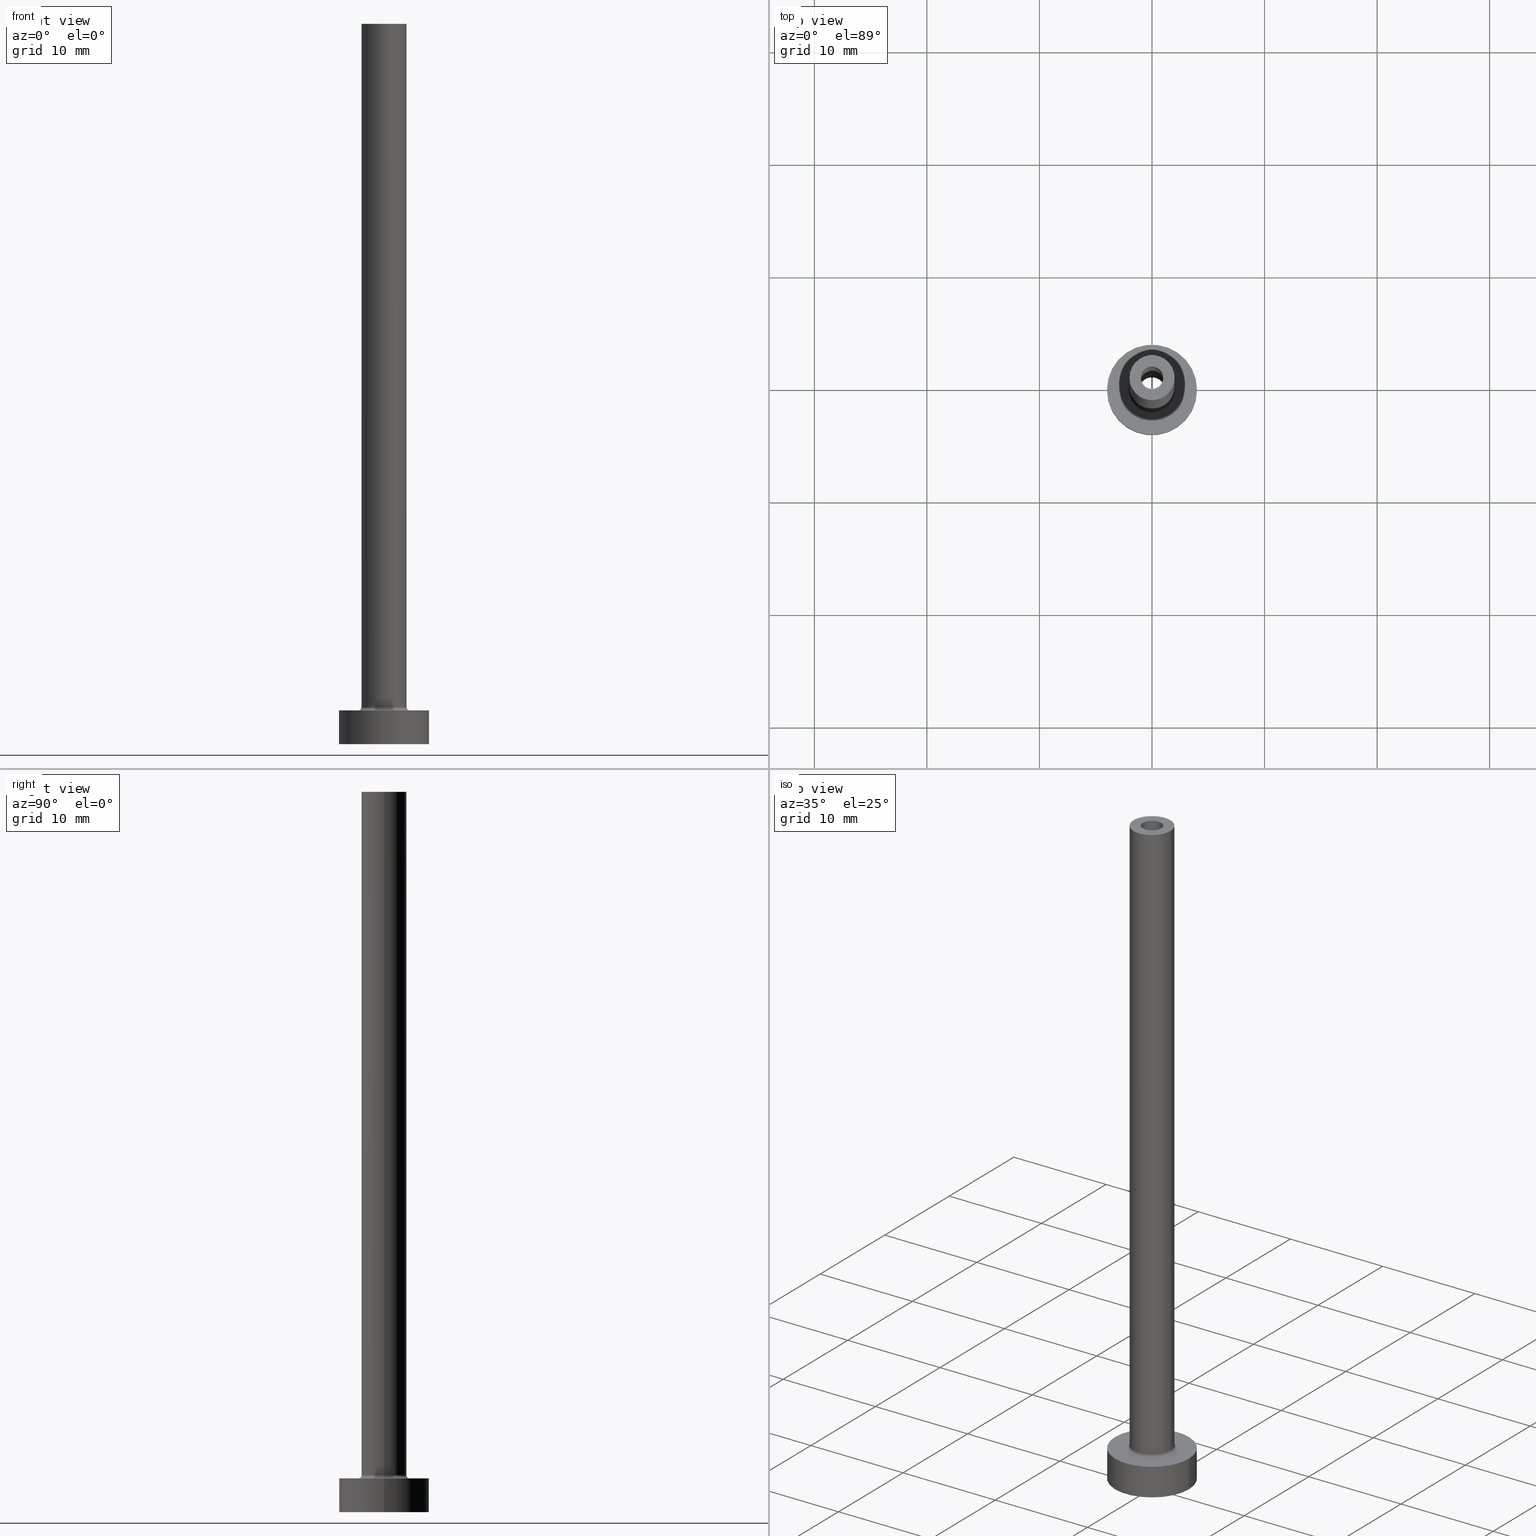
[diagram: canonical four-view strip — front | top / right | iso, engineering-drawing reading convention]
A machine part, canonical four-view strip (front | top / right | iso — engineering-drawing reading convention). The complete STEP part file that produces these views, byte-faithful:
ISO-10303-21;
HEADER;
FILE_DESCRIPTION (( 'STEP AP203' ),
    '1' );
FILE_NAME ('f528.STEP',
    '2023-02-28T13:55:03',
    ( '' ),
    ( '' ),
    'SwSTEP 2.0',
    'SolidWorks 2019',
    '' );
FILE_SCHEMA (( 'CONFIG_CONTROL_DESIGN' ));
ENDSEC;

DATA;
#1 = CARTESIAN_POINT ( 'NONE',  ( -1.000000000000000000, 0.000000000000000000, 64.00000000000000000 ) ) ;
#2 = EDGE_CURVE ( 'NONE', #441, #66, #204, .T. ) ;
#3 = CARTESIAN_POINT ( 'NONE',  ( 0.000000000000000000, 0.000000000000000000, 3.299999999999997158 ) ) ;
#4 = PERSON_AND_ORGANIZATION_ROLE ( 'creator' ) ;
#5 = CARTESIAN_POINT ( 'NONE',  ( 0.000000000000000000, 0.000000000000000000, 0.000000000000000000 ) ) ;
#6 = APPROVAL_ROLE ( '' ) ;
#7 = CIRCLE ( 'NONE', #48, 1.149999999999999911 ) ;
#8 = SECURITY_CLASSIFICATION ( '', '', #290 ) ;
#9 = DIRECTION ( 'NONE',  ( 1.224646799147353207E-16, 1.000000000000000000, -0.000000000000000000 ) ) ;
#10 = EDGE_CURVE ( 'NONE', #241, #307, #429, .T. ) ;
#11 = APPROVAL_ROLE ( '' ) ;
#12 = DIRECTION ( 'NONE',  ( 1.000000000000000000, 0.000000000000000000, 0.000000000000000000 ) ) ;
#13 = ORIENTED_EDGE ( 'NONE', *, *, #38, .T. ) ;
#14 = COORDINATED_UNIVERSAL_TIME_OFFSET ( 1, 0, .AHEAD. ) ;
#15 = FACE_OUTER_BOUND ( 'NONE', #460, .T. ) ;
#16 = ORIENTED_EDGE ( 'NONE', *, *, #120, .F. ) ;
#17 = AXIS2_PLACEMENT_3D ( 'NONE', #304, #163, #418 ) ;
#18 = EDGE_CURVE ( 'NONE', #370, #330, #104, .T. ) ;
#19 = FACE_BOUND ( 'NONE', #381, .T. ) ;
#20 = ORIENTED_EDGE ( 'NONE', *, *, #324, .F. ) ;
#21 = CARTESIAN_POINT ( 'NONE',  ( 0.000000000000000000, 0.000000000000000000, 3.000000000000000000 ) ) ;
#22 = EDGE_LOOP ( 'NONE', ( #64, #378 ) ) ;
#23 = FACE_OUTER_BOUND ( 'NONE', #436, .T. ) ;
#24 = CIRCLE ( 'NONE', #279, 2.299999999999999822 ) ;
#25 = ORIENTED_EDGE ( 'NONE', *, *, #427, .F. ) ;
#26 = CC_DESIGN_DATE_AND_TIME_ASSIGNMENT ( #110, #439, ( #8 ) ) ;
#27 = CARTESIAN_POINT ( 'NONE',  ( 0.000000000000000000, 0.000000000000000000, 47.25269119345811220 ) ) ;
#28 = ORIENTED_EDGE ( 'NONE', *, *, #2, .T. ) ;
#29 = ORIENTED_EDGE ( 'NONE', *, *, #33, .F. ) ;
#30 = DIRECTION ( 'NONE',  ( 0.000000000000000000, 0.000000000000000000, -1.000000000000000000 ) ) ;
#31 = ORIENTED_EDGE ( 'NONE', *, *, #213, .T. ) ;
#32 = APPROVAL_ROLE ( '' ) ;
#33 = EDGE_CURVE ( 'NONE', #375, #194, #447, .T. ) ;
#34 = DIRECTION ( 'NONE',  ( 0.000000000000000000, 0.000000000000000000, 1.000000000000000000 ) ) ;
#35 = LINE ( 'NONE', #1, #184 ) ;
#36 = DIRECTION ( 'NONE',  ( 0.000000000000000000, 0.000000000000000000, 1.000000000000000000 ) ) ;
#37 = CIRCLE ( 'NONE', #355, 1.000000000000000000 ) ;
#38 = EDGE_CURVE ( 'NONE', #330, #66, #278, .T. ) ;
#39 = ORGANIZATION ( 'NEUR�EN�', 'NEUR�EN�', '' ) ;
#40 = FACE_BOUND ( 'NONE', #327, .T. ) ;
#41 = ADVANCED_BREP_SHAPE_REPRESENTATION ( 'f528', ( #437, #390 ), #83 ) ;
#42 = APPROVAL_STATUS ( 'not_yet_approved' ) ;
#43 = DIRECTION ( 'NONE',  ( 0.000000000000000000, 0.000000000000000000, 1.000000000000000000 ) ) ;
#44 = DIRECTION ( 'NONE',  ( 0.000000000000000000, 0.000000000000000000, 1.000000000000000000 ) ) ;
#45 = CC_DESIGN_PERSON_AND_ORGANIZATION_ASSIGNMENT ( #178, #318, ( #8 ) ) ;
#46 = CARTESIAN_POINT ( 'NONE',  ( 0.000000000000000000, 0.000000000000000000, 0.000000000000000000 ) ) ;
#47 = TOROIDAL_SURFACE ( 'NONE', #397, 2.299999999999999822, 0.2999999999999999889 ) ;
#48 = AXIS2_PLACEMENT_3D ( 'NONE', #289, #230, #12 ) ;
#49 = ORIENTED_EDGE ( 'NONE', *, *, #293, .F. ) ;
#50 = PERSON_AND_ORGANIZATION ( #425, #39 ) ;
#51 = CYLINDRICAL_SURFACE ( 'NONE', #242, 4.000000000000000000 ) ;
#52 = ORIENTED_EDGE ( 'NONE', *, *, #86, .F. ) ;
#53 = VERTEX_POINT ( 'NONE', #312 ) ;
#54 = EDGE_CURVE ( 'NONE', #237, #265, #384, .T. ) ;
#55 = AXIS2_PLACEMENT_3D ( 'NONE', #210, #246, #106 ) ;
#56 = CC_DESIGN_APPROVAL ( #74, ( #8 ) ) ;
#57 = ORIENTED_EDGE ( 'NONE', *, *, #54, .F. ) ;
#58 = DIRECTION ( 'NONE',  ( -0.000000000000000000, -0.000000000000000000, -1.000000000000000000 ) ) ;
#59 = ORIENTED_EDGE ( 'NONE', *, *, #101, .F. ) ;
#60 = DIRECTION ( 'NONE',  ( 1.000000000000000000, 0.000000000000000000, -0.000000000000000000 ) ) ;
#61 = ORIENTED_EDGE ( 'NONE', *, *, #192, .F. ) ;
#62 = CYLINDRICAL_SURFACE ( 'NONE', #287, 1.149999999999999911 ) ;
#63 = AXIS2_PLACEMENT_3D ( 'NONE', #102, #65, #240 ) ;
#64 = ORIENTED_EDGE ( 'NONE', *, *, #38, .F. ) ;
#65 = DIRECTION ( 'NONE',  ( 0.000000000000000000, 0.000000000000000000, 1.000000000000000000 ) ) ;
#66 = VERTEX_POINT ( 'NONE', #282 ) ;
#67 = CARTESIAN_POINT ( 'NONE',  ( 0.000000000000000000, 0.000000000000000000, 64.00000000000000000 ) ) ;
#68 = ORIENTED_EDGE ( 'NONE', *, *, #133, .F. ) ;
#69 = CC_DESIGN_PERSON_AND_ORGANIZATION_ASSIGNMENT ( #357, #428, ( #438 ) ) ;
#70 = DIRECTION ( 'NONE',  ( 0.000000000000000000, 0.000000000000000000, 1.000000000000000000 ) ) ;
#71 = ORIENTED_EDGE ( 'NONE', *, *, #353, .F. ) ;
#72 = LOCAL_TIME ( 14, 55, 3.000000000000000000, #393 ) ;
#73 = CARTESIAN_POINT ( 'NONE',  ( -2.000000000000000000, 0.000000000000000000, 64.00000000000000000 ) ) ;
#74 = APPROVAL ( #117, 'NEUR�EN�' ) ;
#75 = DIRECTION ( 'NONE',  ( -1.000000000000000000, 0.000000000000000000, 0.000000000000000000 ) ) ;
#76 = AXIS2_PLACEMENT_3D ( 'NONE', #46, #43, #215 ) ;
#77 = APPROVAL_PERSON_ORGANIZATION ( #50, #413, #6 ) ;
#78 = SHAPE_DEFINITION_REPRESENTATION ( #147, #41 ) ;
#79 = DIRECTION ( 'NONE',  ( -0.000000000000000000, -0.000000000000000000, -1.000000000000000000 ) ) ;
#80 = APPROVAL_DATE_TIME ( #252, #74 ) ;
#81 = CARTESIAN_POINT ( 'NONE',  ( 0.000000000000000000, 0.000000000000000000, 47.25269119345811220 ) ) ;
#82 = CARTESIAN_POINT ( 'NONE',  ( -2.000000000000000000, 0.000000000000000000, 64.00000000000000000 ) ) ;
#83 =( GEOMETRIC_REPRESENTATION_CONTEXT ( 3 ) GLOBAL_UNCERTAINTY_ASSIGNED_CONTEXT ( ( #301 ) ) GLOBAL_UNIT_ASSIGNED_CONTEXT ( ( #201, #359, #217 ) ) REPRESENTATION_CONTEXT ( 'NONE', 'WORKASPACE' ) );
#84 = FACE_OUTER_BOUND ( 'NONE', #455, .T. ) ;
#85 = CARTESIAN_POINT ( 'NONE',  ( 2.000000000000000000, 2.449293598294705921E-16, 64.00000000000000000 ) ) ;
#86 = EDGE_CURVE ( 'NONE', #241, #98, #391, .T. ) ;
#87 = CARTESIAN_POINT ( 'NONE',  ( 0.000000000000000000, 0.000000000000000000, 64.00000000000000000 ) ) ;
#88 = ORIENTED_EDGE ( 'NONE', *, *, #140, .T. ) ;
#89 = CIRCLE ( 'NONE', #261, 1.149999999999999911 ) ;
#90 = DIRECTION ( 'NONE',  ( -1.000000000000000000, 0.000000000000000000, 0.000000000000000000 ) ) ;
#91 = AXIS2_PLACEMENT_3D ( 'NONE', #264, #339, #452 ) ;
#92 = EDGE_CURVE ( 'NONE', #98, #375, #228, .T. ) ;
#93 = FACE_OUTER_BOUND ( 'NONE', #232, .T. ) ;
#94 = ORIENTED_EDGE ( 'NONE', *, *, #276, .F. ) ;
#95 = DIRECTION ( 'NONE',  ( 0.000000000000000000, 0.000000000000000000, 1.000000000000000000 ) ) ;
#96 = VERTEX_POINT ( 'NONE', #176 ) ;
#97 = AXIS2_PLACEMENT_3D ( 'NONE', #87, #260, #90 ) ;
#98 = VERTEX_POINT ( 'NONE', #354 ) ;
#99 = PLANE ( 'NONE',  #134 ) ;
#100 = ORIENTED_EDGE ( 'NONE', *, *, #293, .T. ) ;
#101 = EDGE_CURVE ( 'NONE', #270, #335, #89, .T. ) ;
#102 = CARTESIAN_POINT ( 'NONE',  ( 0.000000000000000000, 0.000000000000000000, 3.299999999999997158 ) ) ;
#103 = ORIENTED_EDGE ( 'NONE', *, *, #366, .F. ) ;
#104 = LINE ( 'NONE', #244, #132 ) ;
#105 = ADVANCED_FACE ( 'NONE', ( #352 ), #317, .F. ) ;
#106 = DIRECTION ( 'NONE',  ( 1.000000000000000000, 0.000000000000000000, 0.000000000000000000 ) ) ;
#107 = CALENDAR_DATE ( 2023, 28, 2 ) ;
#108 = DIRECTION ( 'NONE',  ( 1.000000000000000000, 0.000000000000000000, 0.000000000000000000 ) ) ;
#109 = AXIS2_PLACEMENT_3D ( 'NONE', #432, #58, #329 ) ;
#110 = DATE_AND_TIME ( #350, #124 ) ;
#111 = DIRECTION ( 'NONE',  ( 1.000000000000000000, 0.000000000000000000, 0.000000000000000000 ) ) ;
#112 = CC_DESIGN_PERSON_AND_ORGANIZATION_ASSIGNMENT ( #433, #222, ( #234 ) ) ;
#113 = CALENDAR_DATE ( 2023, 28, 2 ) ;
#114 = CYLINDRICAL_SURFACE ( 'NONE', #97, 2.000000000000000000 ) ;
#115 = DATE_TIME_ROLE ( 'creation_date' ) ;
#116 = LINE ( 'NONE', #395, #236 ) ;
#117 = APPROVAL_STATUS ( 'not_yet_approved' ) ;
#118 = VECTOR ( 'NONE', #294, 1000.000000000000000 ) ;
#119 = LOCAL_TIME ( 14, 55, 3.000000000000000000, #389 ) ;
#120 = EDGE_CURVE ( 'NONE', #96, #128, #142, .T. ) ;
#121 = DIRECTION ( 'NONE',  ( -1.000000000000000000, 0.000000000000000000, 0.000000000000000000 ) ) ;
#122 = ORIENTED_EDGE ( 'NONE', *, *, #10, .T. ) ;
#123 = DIRECTION ( 'NONE',  ( -0.000000000000000000, -0.000000000000000000, -1.000000000000000000 ) ) ;
#124 = LOCAL_TIME ( 14, 55, 3.000000000000000000, #247 ) ;
#125 = PLANE ( 'NONE',  #17 ) ;
#126 = DESIGN_CONTEXT ( 'detailed design', #209, 'design' ) ;
#127 = CARTESIAN_POINT ( 'NONE',  ( 2.000000000000000000, 2.449293598294705921E-16, 3.299999999999997158 ) ) ;
#128 = VERTEX_POINT ( 'NONE', #461 ) ;
#129 = DIRECTION ( 'NONE',  ( 0.000000000000000000, 0.000000000000000000, -1.000000000000000000 ) ) ;
#130 = ORIENTED_EDGE ( 'NONE', *, *, #92, .T. ) ;
#131 = CARTESIAN_POINT ( 'NONE',  ( -4.000000000000000000, 0.000000000000000000, 3.000000000000000000 ) ) ;
#132 = VECTOR ( 'NONE', #79, 1000.000000000000000 ) ;
#133 = EDGE_CURVE ( 'NONE', #237, #227, #35, .T. ) ;
#134 = AXIS2_PLACEMENT_3D ( 'NONE', #347, #412, #454 ) ;
#135 = ORIENTED_EDGE ( 'NONE', *, *, #33, .T. ) ;
#136 = DIRECTION ( 'NONE',  ( 1.000000000000000000, 0.000000000000000000, 0.000000000000000000 ) ) ;
#137 = ORIENTED_EDGE ( 'NONE', *, *, #300, .T. ) ;
#138 = APPLICATION_CONTEXT ( 'configuration controlled 3d designs of mechanical parts and assemblies' ) ;
#139 = EDGE_LOOP ( 'NONE', ( #122, #224 ) ) ;
#140 = EDGE_CURVE ( 'NONE', #128, #335, #216, .T. ) ;
#141 = CARTESIAN_POINT ( 'NONE',  ( 0.000000000000000000, 0.000000000000000000, 3.000000000000000000 ) ) ;
#142 = CIRCLE ( 'NONE', #55, 1.149999999999999911 ) ;
#143 = CIRCLE ( 'NONE', #190, 1.000000000000000000 ) ;
#144 = DIRECTION ( 'NONE',  ( 1.000000000000000000, 0.000000000000000000, 0.000000000000000000 ) ) ;
#145 = DIRECTION ( 'NONE',  ( 0.000000000000000000, 0.000000000000000000, -1.000000000000000000 ) ) ;
#146 = CARTESIAN_POINT ( 'NONE',  ( 0.000000000000000000, 0.000000000000000000, 0.000000000000000000 ) ) ;
#147 = PRODUCT_DEFINITION_SHAPE ( 'NONE', 'NONE',  #234 ) ;
#148 = DIRECTION ( 'NONE',  ( -0.000000000000000000, -0.000000000000000000, -1.000000000000000000 ) ) ;
#149 = EDGE_CURVE ( 'NONE', #194, #53, #308, .T. ) ;
#150 = AXIS2_PLACEMENT_3D ( 'NONE', #253, #157, #403 ) ;
#151 = AXIS2_PLACEMENT_3D ( 'NONE', #446, #449, #382 ) ;
#152 = CARTESIAN_POINT ( 'NONE',  ( 0.000000000000000000, 0.000000000000000000, 3.000000000000000000 ) ) ;
#153 = CARTESIAN_POINT ( 'NONE',  ( 1.000000000000000000, 1.224646799147353207E-16, 64.00000000000000000 ) ) ;
#154 = ORIENTED_EDGE ( 'NONE', *, *, #54, .T. ) ;
#155 = DATE_AND_TIME ( #254, #415 ) ;
#156 = CC_DESIGN_PERSON_AND_ORGANIZATION_ASSIGNMENT ( #325, #328, ( #457 ) ) ;
#157 = DIRECTION ( 'NONE',  ( 0.000000000000000000, 0.000000000000000000, 1.000000000000000000 ) ) ;
#158 = ORIENTED_EDGE ( 'NONE', *, *, #398, .T. ) ;
#159 = AXIS2_PLACEMENT_3D ( 'NONE', #141, #248, #423 ) ;
#160 = FACE_OUTER_BOUND ( 'NONE', #235, .T. ) ;
#161 = LINE ( 'NONE', #225, #385 ) ;
#162 = ORIENTED_EDGE ( 'NONE', *, *, #120, .T. ) ;
#163 = DIRECTION ( 'NONE',  ( 0.000000000000000000, 0.000000000000000000, 1.000000000000000000 ) ) ;
#164 = ORIENTED_EDGE ( 'NONE', *, *, #392, .F. ) ;
#165 = AXIS2_PLACEMENT_3D ( 'NONE', #183, #36, #430 ) ;
#166 = FACE_OUTER_BOUND ( 'NONE', #199, .T. ) ;
#167 = ORIENTED_EDGE ( 'NONE', *, *, #149, .F. ) ;
#168 = FACE_OUTER_BOUND ( 'NONE', #169, .T. ) ;
#169 = EDGE_LOOP ( 'NONE', ( #373, #401, #311, #268 ) ) ;
#170 = CARTESIAN_POINT ( 'NONE',  ( -4.000000000000000000, 0.000000000000000000, 0.000000000000000000 ) ) ;
#171 = EDGE_LOOP ( 'NONE', ( #345, #202, #100, #414 ) ) ;
#172 = DIRECTION ( 'NONE',  ( 1.000000000000000000, 0.000000000000000000, 0.000000000000000000 ) ) ;
#173 = DIRECTION ( 'NONE',  ( -0.000000000000000000, -0.000000000000000000, -1.000000000000000000 ) ) ;
#174 = DIRECTION ( 'NONE',  ( 1.000000000000000000, 0.000000000000000000, 0.000000000000000000 ) ) ;
#175 = CARTESIAN_POINT ( 'NONE',  ( 2.299999999999999822, 0.000000000000000000, 3.299999999999997158 ) ) ;
#176 = CARTESIAN_POINT ( 'NONE',  ( -1.149999999999999911, 0.000000000000000000, 44.00000000000000000 ) ) ;
#177 = LOCAL_TIME ( 14, 55, 3.000000000000000000, #320 ) ;
#178 = PERSON_AND_ORGANIZATION ( #425, #39 ) ;
#179 = PERSON_AND_ORGANIZATION ( #425, #39 ) ;
#180 = ADVANCED_FACE ( 'NONE', ( #40, #280 ), #422, .T. ) ;
#181 = CARTESIAN_POINT ( 'NONE',  ( 0.000000000000000000, 0.000000000000000000, 3.299999999999997158 ) ) ;
#182 = APPLICATION_PROTOCOL_DEFINITION ( 'international standard', 'config_control_design', 1994, #209 ) ;
#183 = CARTESIAN_POINT ( 'NONE',  ( 0.000000000000000000, 0.000000000000000000, 64.00000000000000000 ) ) ;
#184 = VECTOR ( 'NONE', #145, 1000.000000000000000 ) ;
#185 = AXIS2_PLACEMENT_3D ( 'NONE', #272, #70, #297 ) ;
#186 = APPROVAL_DATE_TIME ( #155, #413 ) ;
#187 = ORIENTED_EDGE ( 'NONE', *, *, #2, .F. ) ;
#188 = ADVANCED_FACE ( 'NONE', ( #284 ), #47, .F. ) ;
#189 = CARTESIAN_POINT ( 'NONE',  ( 0.000000000000000000, 0.000000000000000000, 44.00000000000000000 ) ) ;
#190 = AXIS2_PLACEMENT_3D ( 'NONE', #189, #334, #399 ) ;
#191 = DIRECTION ( 'NONE',  ( 0.000000000000000000, 0.000000000000000000, -1.000000000000000000 ) ) ;
#192 = EDGE_CURVE ( 'NONE', #98, #53, #420, .T. ) ;
#193 = CARTESIAN_POINT ( 'NONE',  ( -1.149999999999999911, 0.000000000000000000, 0.000000000000000000 ) ) ;
#194 = VERTEX_POINT ( 'NONE', #419 ) ;
#195 = FACE_BOUND ( 'NONE', #344, .T. ) ;
#196 = ORIENTED_EDGE ( 'NONE', *, *, #281, .F. ) ;
#197 = CC_DESIGN_APPROVAL ( #206, ( #234 ) ) ;
#198 = DIRECTION ( 'NONE',  ( 1.000000000000000000, 0.000000000000000000, 0.000000000000000000 ) ) ;
#199 = EDGE_LOOP ( 'NONE', ( #303, #239 ) ) ;
#200 = ADVANCED_FACE ( 'NONE', ( #440 ), #223, .T. ) ;
#201 =( LENGTH_UNIT ( ) NAMED_UNIT ( * ) SI_UNIT ( .MILLI., .METRE. ) );
#202 = ORIENTED_EDGE ( 'NONE', *, *, #392, .T. ) ;
#203 = CARTESIAN_POINT ( 'NONE',  ( 0.000000000000000000, 0.000000000000000000, 3.000000000000000000 ) ) ;
#204 = LINE ( 'NONE', #348, #369 ) ;
#205 = AXIS2_PLACEMENT_3D ( 'NONE', #208, #34, #174 ) ;
#206 = APPROVAL ( #396, 'NEUR�EN�' ) ;
#207 = CYLINDRICAL_SURFACE ( 'NONE', #448, 1.000000000000000000 ) ;
#208 = CARTESIAN_POINT ( 'NONE',  ( 0.000000000000000000, 0.000000000000000000, 64.00000000000000000 ) ) ;
#209 = APPLICATION_CONTEXT ( 'configuration controlled 3d designs of mechanical parts and assemblies' ) ;
#210 = CARTESIAN_POINT ( 'NONE',  ( 0.000000000000000000, 0.000000000000000000, 44.00000000000000000 ) ) ;
#211 = CLOSED_SHELL ( 'NONE', ( #360, #445, #188, #229, #200, #259, #337, #313, #266, #180, #218, #105, #386, #346 ) ) ;
#212 = CIRCLE ( 'NONE', #406, 4.000000000000000000 ) ;
#213 = EDGE_CURVE ( 'NONE', #307, #375, #444, .T. ) ;
#214 = APPROVAL_DATE_TIME ( #283, #206 ) ;
#215 = DIRECTION ( 'NONE',  ( 1.000000000000000000, 0.000000000000000000, 0.000000000000000000 ) ) ;
#216 = LINE ( 'NONE', #251, #321 ) ;
#217 =( NAMED_UNIT ( * ) SI_UNIT ( $, .STERADIAN. ) SOLID_ANGLE_UNIT ( ) );
#218 = ADVANCED_FACE ( 'NONE', ( #15 ), #404, .F. ) ;
#219 = AXIS2_PLACEMENT_3D ( 'NONE', #358, #9, #277 ) ;
#220 = ORIENTED_EDGE ( 'NONE', *, *, #398, .F. ) ;
#221 = CIRCLE ( 'NONE', #185, 1.149999999999999911 ) ;
#222 = PERSON_AND_ORGANIZATION_ROLE ( 'creator' ) ;
#223 = CYLINDRICAL_SURFACE ( 'NONE', #109, 4.000000000000000000 ) ;
#224 = ORIENTED_EDGE ( 'NONE', *, *, #427, .T. ) ;
#225 = CARTESIAN_POINT ( 'NONE',  ( -1.149999999999999911, 0.000000000000000000, 47.25269119345811220 ) ) ;
#226 = CARTESIAN_POINT ( 'NONE',  ( 0.000000000000000000, 0.000000000000000000, 44.00000000000000000 ) ) ;
#227 = VERTEX_POINT ( 'NONE', #364 ) ;
#228 = CIRCLE ( 'NONE', #299, 2.000000000000000000 ) ;
#229 = ADVANCED_FACE ( 'NONE', ( #160 ), #255, .T. ) ;
#230 = DIRECTION ( 'NONE',  ( -0.000000000000000000, -0.000000000000000000, -1.000000000000000000 ) ) ;
#231 = CARTESIAN_POINT ( 'NONE',  ( 1.149999999999999911, 1.408343819019456028E-16, 0.000000000000000000 ) ) ;
#232 = EDGE_LOOP ( 'NONE', ( #154, #137, #94, #68 ) ) ;
#233 = DIRECTION ( 'NONE',  ( 0.000000000000000000, 0.000000000000000000, 1.000000000000000000 ) ) ;
#234 = PRODUCT_DEFINITION ( 'NEZN�M�', '', #457, #126 ) ;
#235 = EDGE_LOOP ( 'NONE', ( #25, #31, #338, #52 ) ) ;
#236 = VECTOR ( 'NONE', #191, 1000.000000000000000 ) ;
#237 = VERTEX_POINT ( 'NONE', #257 ) ;
#238 = CARTESIAN_POINT ( 'NONE',  ( 0.000000000000000000, 0.000000000000000000, 64.00000000000000000 ) ) ;
#239 = ORIENTED_EDGE ( 'NONE', *, *, #434, .T. ) ;
#240 = DIRECTION ( 'NONE',  ( 1.000000000000000000, 0.000000000000000000, 0.000000000000000000 ) ) ;
#241 = VERTEX_POINT ( 'NONE', #82 ) ;
#242 = AXIS2_PLACEMENT_3D ( 'NONE', #152, #123, #332 ) ;
#243 = APPROVAL_PERSON_ORGANIZATION ( #250, #74, #32 ) ;
#244 = CARTESIAN_POINT ( 'NONE',  ( -4.000000000000000000, 0.000000000000000000, 3.000000000000000000 ) ) ;
#245 = DIRECTION ( 'NONE',  ( 0.000000000000000000, -1.000000000000000000, 0.000000000000000000 ) ) ;
#246 = DIRECTION ( 'NONE',  ( 0.000000000000000000, 0.000000000000000000, 1.000000000000000000 ) ) ;
#247 = COORDINATED_UNIVERSAL_TIME_OFFSET ( 1, 0, .AHEAD. ) ;
#248 = DIRECTION ( 'NONE',  ( -0.000000000000000000, -0.000000000000000000, -1.000000000000000000 ) ) ;
#249 = AXIS2_PLACEMENT_3D ( 'NONE', #81, #388, #75 ) ;
#250 = PERSON_AND_ORGANIZATION ( #425, #39 ) ;
#251 = CARTESIAN_POINT ( 'NONE',  ( 1.149999999999999911, 1.408343819019456028E-16, 47.25269119345811220 ) ) ;
#252 = DATE_AND_TIME ( #113, #119 ) ;
#253 = CARTESIAN_POINT ( 'NONE',  ( 0.000000000000000000, 0.000000000000000000, 3.299999999999997158 ) ) ;
#254 = CALENDAR_DATE ( 2023, 28, 2 ) ;
#255 = CYLINDRICAL_SURFACE ( 'NONE', #341, 2.000000000000000000 ) ;
#256 = ORIENTED_EDGE ( 'NONE', *, *, #92, .F. ) ;
#257 = CARTESIAN_POINT ( 'NONE',  ( -1.000000000000000000, 0.000000000000000000, 64.00000000000000000 ) ) ;
#258 = DIRECTION ( 'NONE',  ( -0.000000000000000000, -0.000000000000000000, -1.000000000000000000 ) ) ;
#259 = ADVANCED_FACE ( 'NONE', ( #84 ), #51, .T. ) ;
#260 = DIRECTION ( 'NONE',  ( -0.000000000000000000, -0.000000000000000000, -1.000000000000000000 ) ) ;
#261 = AXIS2_PLACEMENT_3D ( 'NONE', #5, #387, #286 ) ;
#262 = CIRCLE ( 'NONE', #63, 2.000000000000000000 ) ;
#263 = AXIS2_PLACEMENT_3D ( 'NONE', #203, #233, #198 ) ;
#264 = CARTESIAN_POINT ( 'NONE',  ( 0.000000000000000000, 0.000000000000000000, 64.00000000000000000 ) ) ;
#265 = VERTEX_POINT ( 'NONE', #153 ) ;
#266 = ADVANCED_FACE ( 'NONE', ( #402 ), #114, .T. ) ;
#267 = CARTESIAN_POINT ( 'NONE',  ( 4.000000000000000000, 4.898587196589412829E-16, 3.000000000000000000 ) ) ;
#268 = ORIENTED_EDGE ( 'NONE', *, *, #310, .F. ) ;
#269 = DIRECTION ( 'NONE',  ( -1.000000000000000000, 0.000000000000000000, 0.000000000000000000 ) ) ;
#270 = VERTEX_POINT ( 'NONE', #193 ) ;
#271 = CIRCLE ( 'NONE', #91, 2.000000000000000000 ) ;
#272 = CARTESIAN_POINT ( 'NONE',  ( 0.000000000000000000, 0.000000000000000000, 44.00000000000000000 ) ) ;
#273 = EDGE_LOOP ( 'NONE', ( #443, #158 ) ) ;
#274 = DIRECTION ( 'NONE',  ( 0.000000000000000000, 0.000000000000000000, 1.000000000000000000 ) ) ;
#275 = ORIENTED_EDGE ( 'NONE', *, *, #18, .F. ) ;
#276 = EDGE_CURVE ( 'NONE', #227, #450, #37, .T. ) ;
#277 = DIRECTION ( 'NONE',  ( -1.000000000000000000, 1.224646799147353207E-16, 0.000000000000000000 ) ) ;
#278 = CIRCLE ( 'NONE', #76, 4.000000000000000000 ) ;
#279 = AXIS2_PLACEMENT_3D ( 'NONE', #21, #408, #172 ) ;
#280 = FACE_OUTER_BOUND ( 'NONE', #139, .T. ) ;
#281 = EDGE_CURVE ( 'NONE', #335, #270, #7, .T. ) ;
#282 = CARTESIAN_POINT ( 'NONE',  ( 4.000000000000000000, 4.898587196589412829E-16, 0.000000000000000000 ) ) ;
#283 = DATE_AND_TIME ( #107, #177 ) ;
#284 = FACE_OUTER_BOUND ( 'NONE', #340, .T. ) ;
#285 = APPLICATION_PROTOCOL_DEFINITION ( 'international standard', 'config_control_design', 1994, #138 ) ;
#286 = DIRECTION ( 'NONE',  ( 1.000000000000000000, 0.000000000000000000, 0.000000000000000000 ) ) ;
#287 = AXIS2_PLACEMENT_3D ( 'NONE', #27, #129, #269 ) ;
#288 = CARTESIAN_POINT ( 'NONE',  ( 0.000000000000000000, 0.000000000000000000, 0.000000000000000000 ) ) ;
#289 = CARTESIAN_POINT ( 'NONE',  ( 0.000000000000000000, 0.000000000000000000, 0.000000000000000000 ) ) ;
#290 = SECURITY_CLASSIFICATION_LEVEL ( 'unclassified' ) ;
#291 = ORIENTED_EDGE ( 'NONE', *, *, #213, .F. ) ;
#292 = CC_DESIGN_APPROVAL ( #413, ( #457 ) ) ;
#293 = EDGE_CURVE ( 'NONE', #96, #270, #161, .T. ) ;
#294 = DIRECTION ( 'NONE',  ( -0.000000000000000000, -0.000000000000000000, -1.000000000000000000 ) ) ;
#295 = PLANE ( 'NONE',  #349 ) ;
#296 = ORIENTED_EDGE ( 'NONE', *, *, #18, .T. ) ;
#297 = DIRECTION ( 'NONE',  ( 1.000000000000000000, 0.000000000000000000, 0.000000000000000000 ) ) ;
#298 = ORIENTED_EDGE ( 'NONE', *, *, #379, .T. ) ;
#299 = AXIS2_PLACEMENT_3D ( 'NONE', #3, #394, #111 ) ;
#300 = EDGE_CURVE ( 'NONE', #265, #450, #116, .T. ) ;
#301 = UNCERTAINTY_MEASURE_WITH_UNIT (LENGTH_MEASURE( 1.000000000000000082E-05 ), #201, 'distance_accuracy_value', 'NONE');
#302 = DIRECTION ( 'NONE',  ( 0.000000000000000000, 0.000000000000000000, 1.000000000000000000 ) ) ;
#303 = ORIENTED_EDGE ( 'NONE', *, *, #366, .T. ) ;
#304 = CARTESIAN_POINT ( 'NONE',  ( 0.000000000000000000, 0.000000000000000000, 3.000000000000000000 ) ) ;
#305 = EDGE_LOOP ( 'NONE', ( #351, #28, #298, #275 ) ) ;
#306 = DIRECTION ( 'NONE',  ( 0.000000000000000000, 0.000000000000000000, -1.000000000000000000 ) ) ;
#307 = VERTEX_POINT ( 'NONE', #367 ) ;
#308 = CIRCLE ( 'NONE', #159, 2.299999999999999822 ) ;
#309 = CARTESIAN_POINT ( 'NONE',  ( 0.000000000000000000, 0.000000000000000000, 3.000000000000000000 ) ) ;
#310 = EDGE_CURVE ( 'NONE', #450, #227, #143, .T. ) ;
#311 = ORIENTED_EDGE ( 'NONE', *, *, #133, .T. ) ;
#312 = CARTESIAN_POINT ( 'NONE',  ( -2.299999999999999822, 2.816687638038912056E-16, 2.999999999999998668 ) ) ;
#313 = ADVANCED_FACE ( 'NONE', ( #19, #336 ), #295, .F. ) ;
#314 = AXIS2_PLACEMENT_3D ( 'NONE', #175, #245, #426 ) ;
#315 = AXIS2_PLACEMENT_3D ( 'NONE', #238, #306, #458 ) ;
#316 = DIRECTION ( 'NONE',  ( 0.000000000000000000, 0.000000000000000000, 1.000000000000000000 ) ) ;
#317 = CYLINDRICAL_SURFACE ( 'NONE', #249, 1.149999999999999911 ) ;
#318 = PERSON_AND_ORGANIZATION_ROLE ( 'classification_officer' ) ;
#319 = CARTESIAN_POINT ( 'NONE',  ( 0.000000000000000000, 0.000000000000000000, 64.00000000000000000 ) ) ;
#320 = COORDINATED_UNIVERSAL_TIME_OFFSET ( 1, 0, .AHEAD. ) ;
#321 = VECTOR ( 'NONE', #356, 1000.000000000000000 ) ;
#322 = DIRECTION ( 'NONE',  ( 1.000000000000000000, 0.000000000000000000, 0.000000000000000000 ) ) ;
#323 = CIRCLE ( 'NONE', #371, 1.000000000000000000 ) ;
#324 = EDGE_CURVE ( 'NONE', #265, #237, #323, .T. ) ;
#325 = PERSON_AND_ORGANIZATION ( #425, #39 ) ;
#326 = DIRECTION ( 'NONE',  ( 1.000000000000000000, 0.000000000000000000, 0.000000000000000000 ) ) ;
#327 = EDGE_LOOP ( 'NONE', ( #57, #20 ) ) ;
#328 = PERSON_AND_ORGANIZATION_ROLE ( 'design_supplier' ) ;
#329 = DIRECTION ( 'NONE',  ( -1.000000000000000000, 0.000000000000000000, 0.000000000000000000 ) ) ;
#330 = VERTEX_POINT ( 'NONE', #170 ) ;
#331 = CC_DESIGN_PERSON_AND_ORGANIZATION_ASSIGNMENT ( #179, #4, ( #457 ) ) ;
#332 = DIRECTION ( 'NONE',  ( -1.000000000000000000, 0.000000000000000000, 0.000000000000000000 ) ) ;
#333 = CC_DESIGN_SECURITY_CLASSIFICATION ( #8, ( #457 ) ) ;
#334 = DIRECTION ( 'NONE',  ( 0.000000000000000000, 0.000000000000000000, 1.000000000000000000 ) ) ;
#335 = VERTEX_POINT ( 'NONE', #231 ) ;
#336 = FACE_OUTER_BOUND ( 'NONE', #22, .T. ) ;
#337 = ADVANCED_FACE ( 'NONE', ( #372, #166 ), #125, .T. ) ;
#338 = ORIENTED_EDGE ( 'NONE', *, *, #353, .T. ) ;
#339 = DIRECTION ( 'NONE',  ( 0.000000000000000000, 0.000000000000000000, 1.000000000000000000 ) ) ;
#340 = EDGE_LOOP ( 'NONE', ( #256, #459, #167, #29 ) ) ;
#341 = AXIS2_PLACEMENT_3D ( 'NONE', #442, #258, #121 ) ;
#342 = CIRCLE ( 'NONE', #151, 4.000000000000000000 ) ;
#343 = CARTESIAN_POINT ( 'NONE',  ( 0.000000000000000000, 0.000000000000000000, 64.00000000000000000 ) ) ;
#344 = EDGE_LOOP ( 'NONE', ( #417, #409 ) ) ;
#345 = ORIENTED_EDGE ( 'NONE', *, *, #140, .F. ) ;
#346 = ADVANCED_FACE ( 'NONE', ( #168 ), #207, .F. ) ;
#347 = CARTESIAN_POINT ( 'NONE',  ( 0.000000000000000000, 0.000000000000000000, 44.00000000000000000 ) ) ;
#348 = CARTESIAN_POINT ( 'NONE',  ( 4.000000000000000000, 4.898587196589412829E-16, 3.000000000000000000 ) ) ;
#349 = AXIS2_PLACEMENT_3D ( 'NONE', #288, #95, #60 ) ;
#350 = CALENDAR_DATE ( 2023, 28, 2 ) ;
#351 = ORIENTED_EDGE ( 'NONE', *, *, #434, .F. ) ;
#352 = FACE_OUTER_BOUND ( 'NONE', #171, .T. ) ;
#353 = EDGE_CURVE ( 'NONE', #375, #98, #262, .T. ) ;
#354 = CARTESIAN_POINT ( 'NONE',  ( -2.000000000000000000, 0.000000000000000000, 3.299999999999997158 ) ) ;
#355 = AXIS2_PLACEMENT_3D ( 'NONE', #226, #368, #326 ) ;
#356 = DIRECTION ( 'NONE',  ( 0.000000000000000000, 0.000000000000000000, -1.000000000000000000 ) ) ;
#357 = PERSON_AND_ORGANIZATION ( #425, #39 ) ;
#358 = CARTESIAN_POINT ( 'NONE',  ( -2.299999999999999822, 2.816687638038912056E-16, 3.299999999999997158 ) ) ;
#359 =( NAMED_UNIT ( * ) PLANE_ANGLE_UNIT ( ) SI_UNIT ( $, .RADIAN. ) );
#360 = ADVANCED_FACE ( 'NONE', ( #93 ), #374, .F. ) ;
#361 = DIRECTION ( 'NONE',  ( 0.000000000000000000, 0.000000000000000000, 1.000000000000000000 ) ) ;
#362 = MECHANICAL_CONTEXT ( 'NONE', #138, 'mechanical' ) ;
#363 = DATE_AND_TIME ( #424, #72 ) ;
#364 = CARTESIAN_POINT ( 'NONE',  ( -1.000000000000000000, 0.000000000000000000, 44.00000000000000000 ) ) ;
#365 = ORIENTED_EDGE ( 'NONE', *, *, #10, .F. ) ;
#366 = EDGE_CURVE ( 'NONE', #370, #441, #421, .T. ) ;
#367 = CARTESIAN_POINT ( 'NONE',  ( 2.000000000000000000, 2.449293598294705921E-16, 64.00000000000000000 ) ) ;
#368 = DIRECTION ( 'NONE',  ( 0.000000000000000000, 0.000000000000000000, 1.000000000000000000 ) ) ;
#369 = VECTOR ( 'NONE', #173, 1000.000000000000000 ) ;
#370 = VERTEX_POINT ( 'NONE', #131 ) ;
#371 = AXIS2_PLACEMENT_3D ( 'NONE', #343, #274, #380 ) ;
#372 = FACE_BOUND ( 'NONE', #273, .T. ) ;
#373 = ORIENTED_EDGE ( 'NONE', *, *, #300, .F. ) ;
#374 = CYLINDRICAL_SURFACE ( 'NONE', #315, 1.000000000000000000 ) ;
#375 = VERTEX_POINT ( 'NONE', #127 ) ;
#376 = VECTOR ( 'NONE', #148, 1000.000000000000000 ) ;
#377 = DIRECTION ( 'NONE',  ( -1.000000000000000000, 0.000000000000000000, 0.000000000000000000 ) ) ;
#378 = ORIENTED_EDGE ( 'NONE', *, *, #379, .F. ) ;
#379 = EDGE_CURVE ( 'NONE', #66, #330, #342, .T. ) ;
#380 = DIRECTION ( 'NONE',  ( 1.000000000000000000, 0.000000000000000000, 0.000000000000000000 ) ) ;
#381 = EDGE_LOOP ( 'NONE', ( #59, #196 ) ) ;
#382 = DIRECTION ( 'NONE',  ( 1.000000000000000000, 0.000000000000000000, 0.000000000000000000 ) ) ;
#383 = EDGE_LOOP ( 'NONE', ( #162, #88, #411, #49 ) ) ;
#384 = CIRCLE ( 'NONE', #456, 1.000000000000000000 ) ;
#385 = VECTOR ( 'NONE', #435, 1000.000000000000000 ) ;
#386 = ADVANCED_FACE ( 'NONE', ( #195, #23 ), #99, .F. ) ;
#387 = DIRECTION ( 'NONE',  ( -0.000000000000000000, -0.000000000000000000, -1.000000000000000000 ) ) ;
#388 = DIRECTION ( 'NONE',  ( 0.000000000000000000, 0.000000000000000000, -1.000000000000000000 ) ) ;
#389 = COORDINATED_UNIVERSAL_TIME_OFFSET ( 1, 0, .AHEAD. ) ;
#390 = AXIS2_PLACEMENT_3D ( 'NONE', #146, #44, #144 ) ;
#391 = LINE ( 'NONE', #73, #376 ) ;
#392 = EDGE_CURVE ( 'NONE', #128, #96, #221, .T. ) ;
#393 = COORDINATED_UNIVERSAL_TIME_OFFSET ( 1, 0, .AHEAD. ) ;
#394 = DIRECTION ( 'NONE',  ( 0.000000000000000000, 0.000000000000000000, 1.000000000000000000 ) ) ;
#395 = CARTESIAN_POINT ( 'NONE',  ( 1.000000000000000000, 1.224646799147353207E-16, 64.00000000000000000 ) ) ;
#396 = APPROVAL_STATUS ( 'not_yet_approved' ) ;
#397 = AXIS2_PLACEMENT_3D ( 'NONE', #181, #361, #322 ) ;
#398 = EDGE_CURVE ( 'NONE', #53, #194, #24, .T. ) ;
#399 = DIRECTION ( 'NONE',  ( 1.000000000000000000, 0.000000000000000000, 0.000000000000000000 ) ) ;
#400 = APPROVAL_PERSON_ORGANIZATION ( #431, #206, #11 ) ;
#401 = ORIENTED_EDGE ( 'NONE', *, *, #324, .T. ) ;
#402 = FACE_OUTER_BOUND ( 'NONE', #405, .T. ) ;
#403 = DIRECTION ( 'NONE',  ( 1.000000000000000000, 0.000000000000000000, 0.000000000000000000 ) ) ;
#404 = TOROIDAL_SURFACE ( 'NONE', #150, 2.299999999999999822, 0.2999999999999999889 ) ;
#405 = EDGE_LOOP ( 'NONE', ( #291, #365, #453, #130 ) ) ;
#406 = AXIS2_PLACEMENT_3D ( 'NONE', #309, #302, #136 ) ;
#407 = CC_DESIGN_DATE_AND_TIME_ASSIGNMENT ( #363, #115, ( #234 ) ) ;
#408 = DIRECTION ( 'NONE',  ( -0.000000000000000000, -0.000000000000000000, -1.000000000000000000 ) ) ;
#409 = ORIENTED_EDGE ( 'NONE', *, *, #310, .T. ) ;
#410 = FACE_OUTER_BOUND ( 'NONE', #383, .T. ) ;
#411 = ORIENTED_EDGE ( 'NONE', *, *, #281, .T. ) ;
#412 = DIRECTION ( 'NONE',  ( 0.000000000000000000, 0.000000000000000000, 1.000000000000000000 ) ) ;
#413 = APPROVAL ( #42, 'NEUR�EN�' ) ;
#414 = ORIENTED_EDGE ( 'NONE', *, *, #101, .T. ) ;
#415 = LOCAL_TIME ( 14, 55, 3.000000000000000000, #14 ) ;
#416 = CARTESIAN_POINT ( 'NONE',  ( 1.000000000000000000, 1.224646799147353207E-16, 44.00000000000000000 ) ) ;
#417 = ORIENTED_EDGE ( 'NONE', *, *, #276, .T. ) ;
#418 = DIRECTION ( 'NONE',  ( 1.000000000000000000, 0.000000000000000000, -0.000000000000000000 ) ) ;
#419 = CARTESIAN_POINT ( 'NONE',  ( 2.299999999999999822, 0.000000000000000000, 2.999999999999998668 ) ) ;
#420 = CIRCLE ( 'NONE', #219, 0.2999999999999999334 ) ;
#421 = CIRCLE ( 'NONE', #263, 4.000000000000000000 ) ;
#422 = PLANE ( 'NONE',  #165 ) ;
#423 = DIRECTION ( 'NONE',  ( 1.000000000000000000, 0.000000000000000000, 0.000000000000000000 ) ) ;
#424 = CALENDAR_DATE ( 2023, 28, 2 ) ;
#425 = PERSON ( 'NEUR�EN�', 'NEUR�EN�', 'NEUR�EN�', ('NEUR�EN�'), ('NEUR�EN�'), ('NEUR�EN�') ) ;
#426 = DIRECTION ( 'NONE',  ( 0.000000000000000000, 0.000000000000000000, -1.000000000000000000 ) ) ;
#427 = EDGE_CURVE ( 'NONE', #307, #241, #271, .T. ) ;
#428 = PERSON_AND_ORGANIZATION_ROLE ( 'design_owner' ) ;
#429 = CIRCLE ( 'NONE', #205, 2.000000000000000000 ) ;
#430 = DIRECTION ( 'NONE',  ( 1.000000000000000000, 0.000000000000000000, -0.000000000000000000 ) ) ;
#431 = PERSON_AND_ORGANIZATION ( #425, #39 ) ;
#432 = CARTESIAN_POINT ( 'NONE',  ( 0.000000000000000000, 0.000000000000000000, 3.000000000000000000 ) ) ;
#433 = PERSON_AND_ORGANIZATION ( #425, #39 ) ;
#434 = EDGE_CURVE ( 'NONE', #441, #370, #212, .T. ) ;
#435 = DIRECTION ( 'NONE',  ( 0.000000000000000000, 0.000000000000000000, -1.000000000000000000 ) ) ;
#436 = EDGE_LOOP ( 'NONE', ( #16, #164 ) ) ;
#437 = MANIFOLD_SOLID_BREP ( 'Odebrat vysunut�m4', #211 ) ;
#438 = PRODUCT ( 'f528', 'f528', '', ( #362 ) ) ;
#439 = DATE_TIME_ROLE ( 'classification_date' ) ;
#440 = FACE_OUTER_BOUND ( 'NONE', #305, .T. ) ;
#441 = VERTEX_POINT ( 'NONE', #267 ) ;
#442 = CARTESIAN_POINT ( 'NONE',  ( 0.000000000000000000, 0.000000000000000000, 64.00000000000000000 ) ) ;
#443 = ORIENTED_EDGE ( 'NONE', *, *, #149, .T. ) ;
#444 = LINE ( 'NONE', #85, #118 ) ;
#445 = ADVANCED_FACE ( 'NONE', ( #410 ), #62, .F. ) ;
#446 = CARTESIAN_POINT ( 'NONE',  ( 0.000000000000000000, 0.000000000000000000, 0.000000000000000000 ) ) ;
#447 = CIRCLE ( 'NONE', #314, 0.2999999999999999334 ) ;
#448 = AXIS2_PLACEMENT_3D ( 'NONE', #67, #30, #377 ) ;
#449 = DIRECTION ( 'NONE',  ( 0.000000000000000000, 0.000000000000000000, 1.000000000000000000 ) ) ;
#450 = VERTEX_POINT ( 'NONE', #416 ) ;
#451 = PRODUCT_RELATED_PRODUCT_CATEGORY ( 'detail', '', ( #438 ) ) ;
#452 = DIRECTION ( 'NONE',  ( 1.000000000000000000, 0.000000000000000000, 0.000000000000000000 ) ) ;
#453 = ORIENTED_EDGE ( 'NONE', *, *, #86, .T. ) ;
#454 = DIRECTION ( 'NONE',  ( 1.000000000000000000, 0.000000000000000000, -0.000000000000000000 ) ) ;
#455 = EDGE_LOOP ( 'NONE', ( #187, #103, #296, #13 ) ) ;
#456 = AXIS2_PLACEMENT_3D ( 'NONE', #319, #316, #108 ) ;
#457 = PRODUCT_DEFINITION_FORMATION_WITH_SPECIFIED_SOURCE ( 'LIBOVOLN�', '', #438, .NOT_KNOWN. ) ;
#458 = DIRECTION ( 'NONE',  ( -1.000000000000000000, 0.000000000000000000, 0.000000000000000000 ) ) ;
#459 = ORIENTED_EDGE ( 'NONE', *, *, #192, .T. ) ;
#460 = EDGE_LOOP ( 'NONE', ( #61, #71, #135, #220 ) ) ;
#461 = CARTESIAN_POINT ( 'NONE',  ( 1.149999999999999911, 1.408343819019456028E-16, 44.00000000000000000 ) ) ;
ENDSEC;
END-ISO-10303-21;
